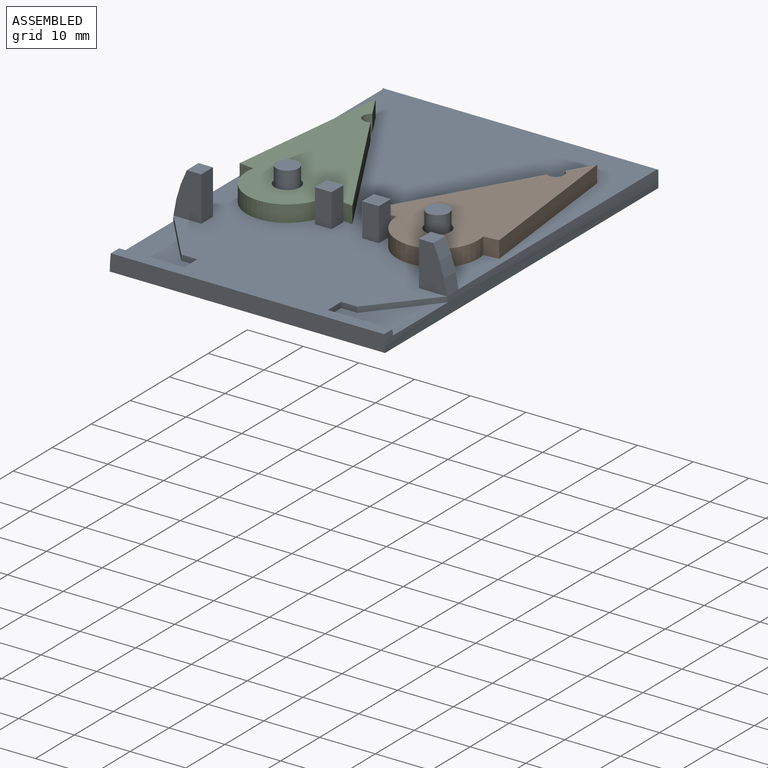
[diagram: assembled view]
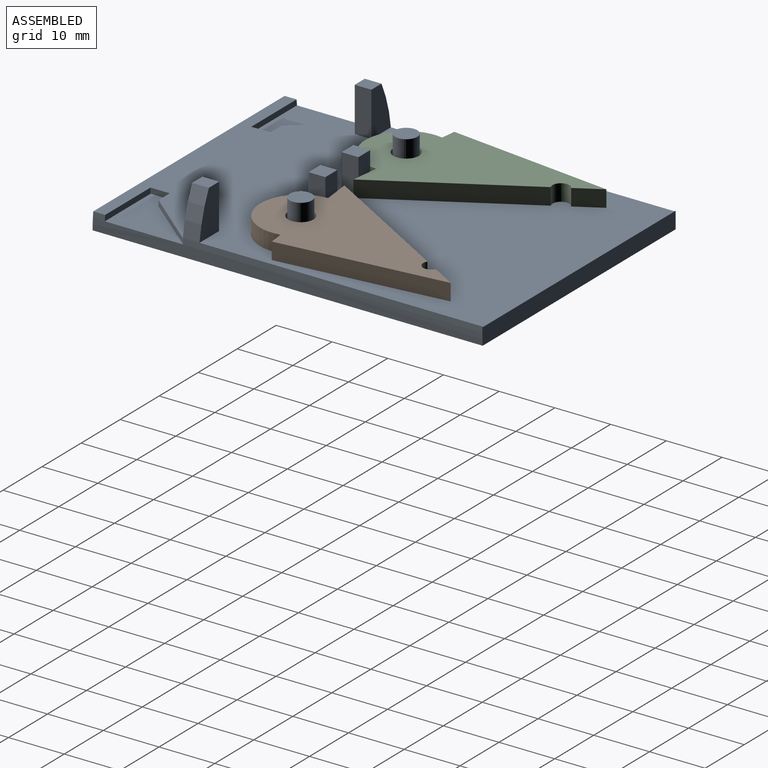
[diagram: assembled view, second angle]
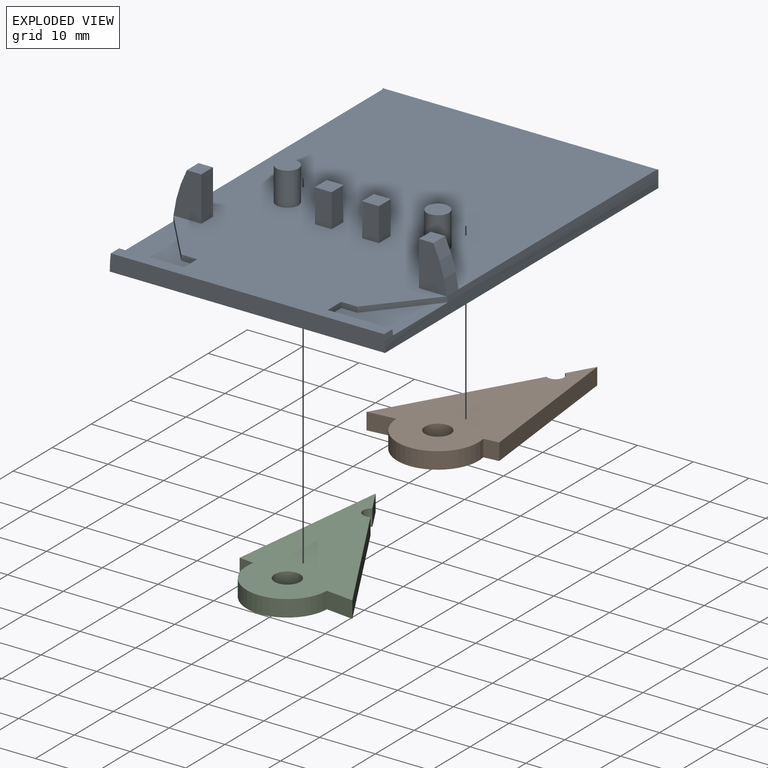
[diagram: exploded view]
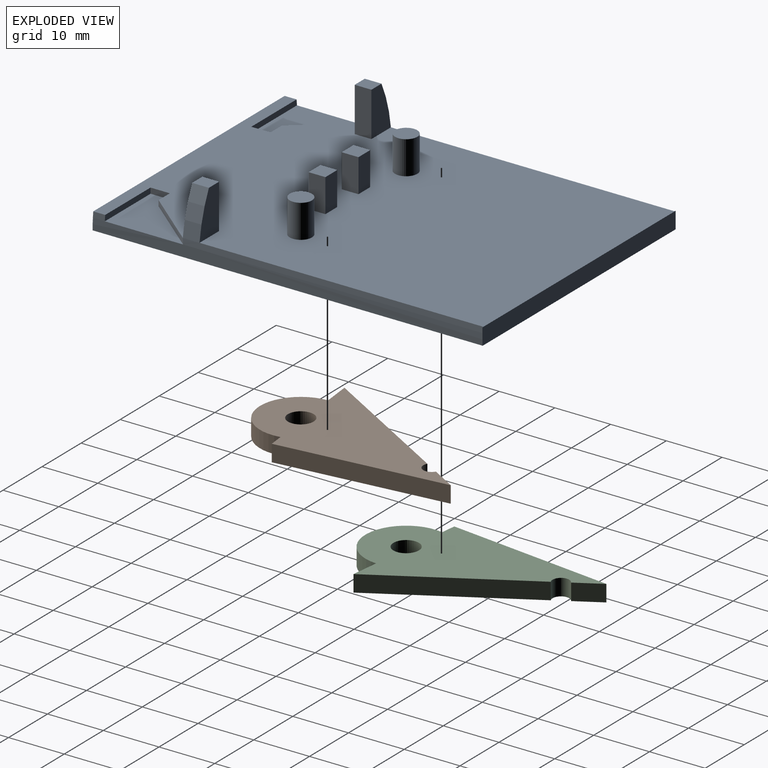
[diagram: exploded view, second angle]
ASSEMBLY  parts=3 mates=2
PART A: 42 faces, bbox 49.5x70x11 mm
  f0: plane 70x49.47mm, normal (0,0,1), area 3187.7mm2, adj f1,f3,f4,f6,f7,f9,f10,f12
  f1: plane 49.4x3mm, normal (0,-1,0), area 147.8mm2, adj f0,f2,f38,f41
  f2: plane 70x49.47mm, normal (0,0,-1), area 3458mm2, adj f1,f15,f16,f27,f38,f39,f40,f41
  f3: plane 8x4.98mm, normal (0,1,0), area 32.2mm2, adj f0,f5,f19,f41
  f4: plane 8x4.98mm, normal (0,-1,0), area 32.2mm2, adj f0,f5,f19,f41
  f5: plane 3x2.58mm, normal (0,0,1), area 7.7mm2, adj f3,f4,f19,f41
  f6: plane 11.71x1mm, normal (0,1,0), area 11.7mm2, adj f0,f8,f25,f41
  f7: plane 10.57x8.82mm, normal (-0.77,-0.64,0), area 13.7mm2, adj f0,f8,f26,f41
  f8: plane 14.04x11.71mm, normal (0,0,1), area 87.3mm2, adj f6,f7,f25,f26,f41
  f9: plane 8x4.98mm, normal (0,1,0), area 32.2mm2, adj f0,f11,f30,f38
  f10: plane 8x4.98mm, normal (0,-1,0), area 32.2mm2, adj f0,f11,f30,f38
  f11: plane 3x2.58mm, normal (0,0,1), area 7.7mm2, adj f9,f10,f30,f38
  f12: plane 11.71x1mm, normal (0,1,0), area 11.7mm2, adj f0,f14,f36,f38
  f13: plane 10.57x8.82mm, normal (0.77,-0.64,0), area 13.7mm2, adj f0,f14,f37,f38
  f14: plane 14.04x11.71mm, normal (0,0,1), area 87.3mm2, adj f12,f13,f36,f37,f38
  f15: plane 3x0.06mm, normal (-1,0,0), area 0.2mm2, adj f0,f2,f16,f40
  f16: plane 49.47x3mm, normal (0,1,0), area 148.4mm2, adj f0,f2,f15,f27
  f17: cylinder r=2mm len=6mm, axis (0,0,-1), area 75.4mm2, adj f0,f18
  f18: plane 4x4mm, normal (0,0,1), area 12.6mm2, adj f17
  f19: plane 8x3mm, normal (1,0,0), area 24mm2, adj f0,f3,f4,f5
  f20: plane 6x3mm, normal (-1,0,0), area 18mm2, adj f0,f21,f23,f24
  f21: plane 6x3mm, normal (0,-1,0), area 18mm2, adj f0,f20,f22,f24
  f22: plane 6x3mm, normal (1,0,0), area 18mm2, adj f0,f21,f23,f24
  f23: plane 6x3mm, normal (0,1,0), area 18mm2, adj f0,f20,f22,f24
  f24: plane 3x3mm, normal (0,0,1), area 9mm2, adj f20,f21,f22,f23
  f25: plane 3.47x1mm, normal (-1,0,0), area 3.5mm2, adj f0,f6,f8,f26
  f26: plane 2.89x1mm, normal (0,-1,0), area 2.9mm2, adj f0,f7,f8,f25
  f27: plane 3x0.06mm, normal (1,0,0), area 0.2mm2, adj f0,f2,f16,f39
  f28: cylinder r=2mm len=6mm, axis (0,0,-1), area 75.4mm2, adj f0,f29
  f29: plane 4x4mm, normal (0,0,1), area 12.6mm2, adj f28
  f30: plane 8x3mm, normal (-1,0,0), area 24mm2, adj f0,f9,f10,f11
  f31: plane 6x3mm, normal (1,0,0), area 18mm2, adj f0,f32,f34,f35
  f32: plane 6x3mm, normal (0,-1,0), area 18mm2, adj f0,f31,f33,f35
  f33: plane 6x3mm, normal (-1,0,0), area 18mm2, adj f0,f32,f34,f35
  f34: plane 6x3mm, normal (0,1,0), area 18mm2, adj f0,f31,f33,f35
  f35: plane 3x3mm, normal (0,0,1), area 9mm2, adj f31,f32,f33,f34
  f36: plane 3.47x1mm, normal (1,0,0), area 3.5mm2, adj f0,f12,f14,f37
  f37: plane 2.89x1mm, normal (0,-1,0), area 2.9mm2, adj f0,f13,f14,f36
  f38: cylinder r=24.7mm len=69.94mm, axis (0,1,0), area 221.5mm2, adj f0,f1,f2,f9,f10,f11,f12,f13
  f39: plane 3x0.22mm, normal (0,-1,0), area 0.3mm2, adj f0,f2,f27,f38
  f40: plane 3x0.22mm, normal (0,-1,0), area 0.3mm2, adj f0,f2,f15,f41
  f41: cylinder r=24.7mm len=69.94mm, axis (0,1,0), area 221.5mm2, adj f0,f1,f2,f3,f4,f5,f6,f7
PART B: 10 faces, bbox 37.9x22.2x3 mm
  f0: plane 23.4x17.34mm, normal (0.6,0.8,0), area 87.4mm2, adj f5,f7,f8,f9
  f1: plane 4.19x3.11mm, normal (0.6,0.8,0), area 15.7mm2, adj f2,f7,f8,f9
  f2: plane 30x3mm, normal (0,-1,0), area 90mm2, adj f1,f3,f7,f8
  f3: plane 3x2.68mm, normal (-1,0,0), area 8mm2, adj f2,f4,f7,f8
  f4: cylinder r=7.3mm len=14.6mm, axis (0,0,-1), area 72.3mm2, adj f3,f5,f7,f8
  f5: plane 5x3mm, normal (-1,0,0), area 15mm2, adj f0,f4,f7,f8
  f6: cylinder r=2.3mm len=4.6mm, axis (0,0,-1), area 43.4mm2, adj f7,f8
  f7: plane 37.89x22.23mm, normal (0,0,1), area 405.7mm2, adj f0,f1,f2,f3,f4,f5,f6,f9
  f8: plane 37.89x22.23mm, normal (0,0,-1), area 405.7mm2, adj f0,f1,f2,f3,f4,f5,f6,f9
  f9: cylinder r=1.5mm len=3mm, axis (0,0,1), area 14.1mm2, adj f0,f1,f7,f8
PART C: 10 faces, bbox 37.9x22.2x3 mm
  f0: plane 23.4x17.34mm, normal (-0.6,0.8,0), area 87.4mm2, adj f5,f7,f8,f9
  f1: plane 4.19x3.11mm, normal (-0.6,0.8,0), area 15.7mm2, adj f2,f7,f8,f9
  f2: plane 30x3mm, normal (0,-1,0), area 90mm2, adj f1,f3,f7,f8
  f3: plane 3x2.68mm, normal (1,0,0), area 8mm2, adj f2,f4,f7,f8
  f4: cylinder r=7.3mm len=14.6mm, axis (0,0,-1), area 72.3mm2, adj f3,f5,f7,f8
  f5: plane 5x3mm, normal (1,0,0), area 15mm2, adj f0,f4,f7,f8
  f6: cylinder r=2.3mm len=4.6mm, axis (0,0,-1), area 43.4mm2, adj f7,f8
  f7: plane 37.89x22.23mm, normal (0,0,1), area 405.7mm2, adj f0,f1,f2,f3,f4,f5,f6,f9
  f8: plane 37.89x22.23mm, normal (0,0,-1), area 405.7mm2, adj f0,f1,f2,f3,f4,f5,f6,f9
  f9: cylinder r=1.5mm len=3mm, axis (0,0,1), area 14.1mm2, adj f0,f1,f7,f8
PLACE A t=(-3.35,-6.91,4.42)mm fixed
PLACE B rot(axis=(0,0,1),96.3deg) t=(9.73,-14.63,4.42)mm
PLACE C rot(axis=(0,0,-1),96.8deg) t=(-24.35,-21.55,4.42)mm
MATE revolute B.f4 <-> A.f28  axis (0,0,1) through (6.65,-4.91,10.42)mm
MATE revolute C.f4 <-> A.f17  axis (0,0,-1) through (-20.35,-4.91,10.42)mm
